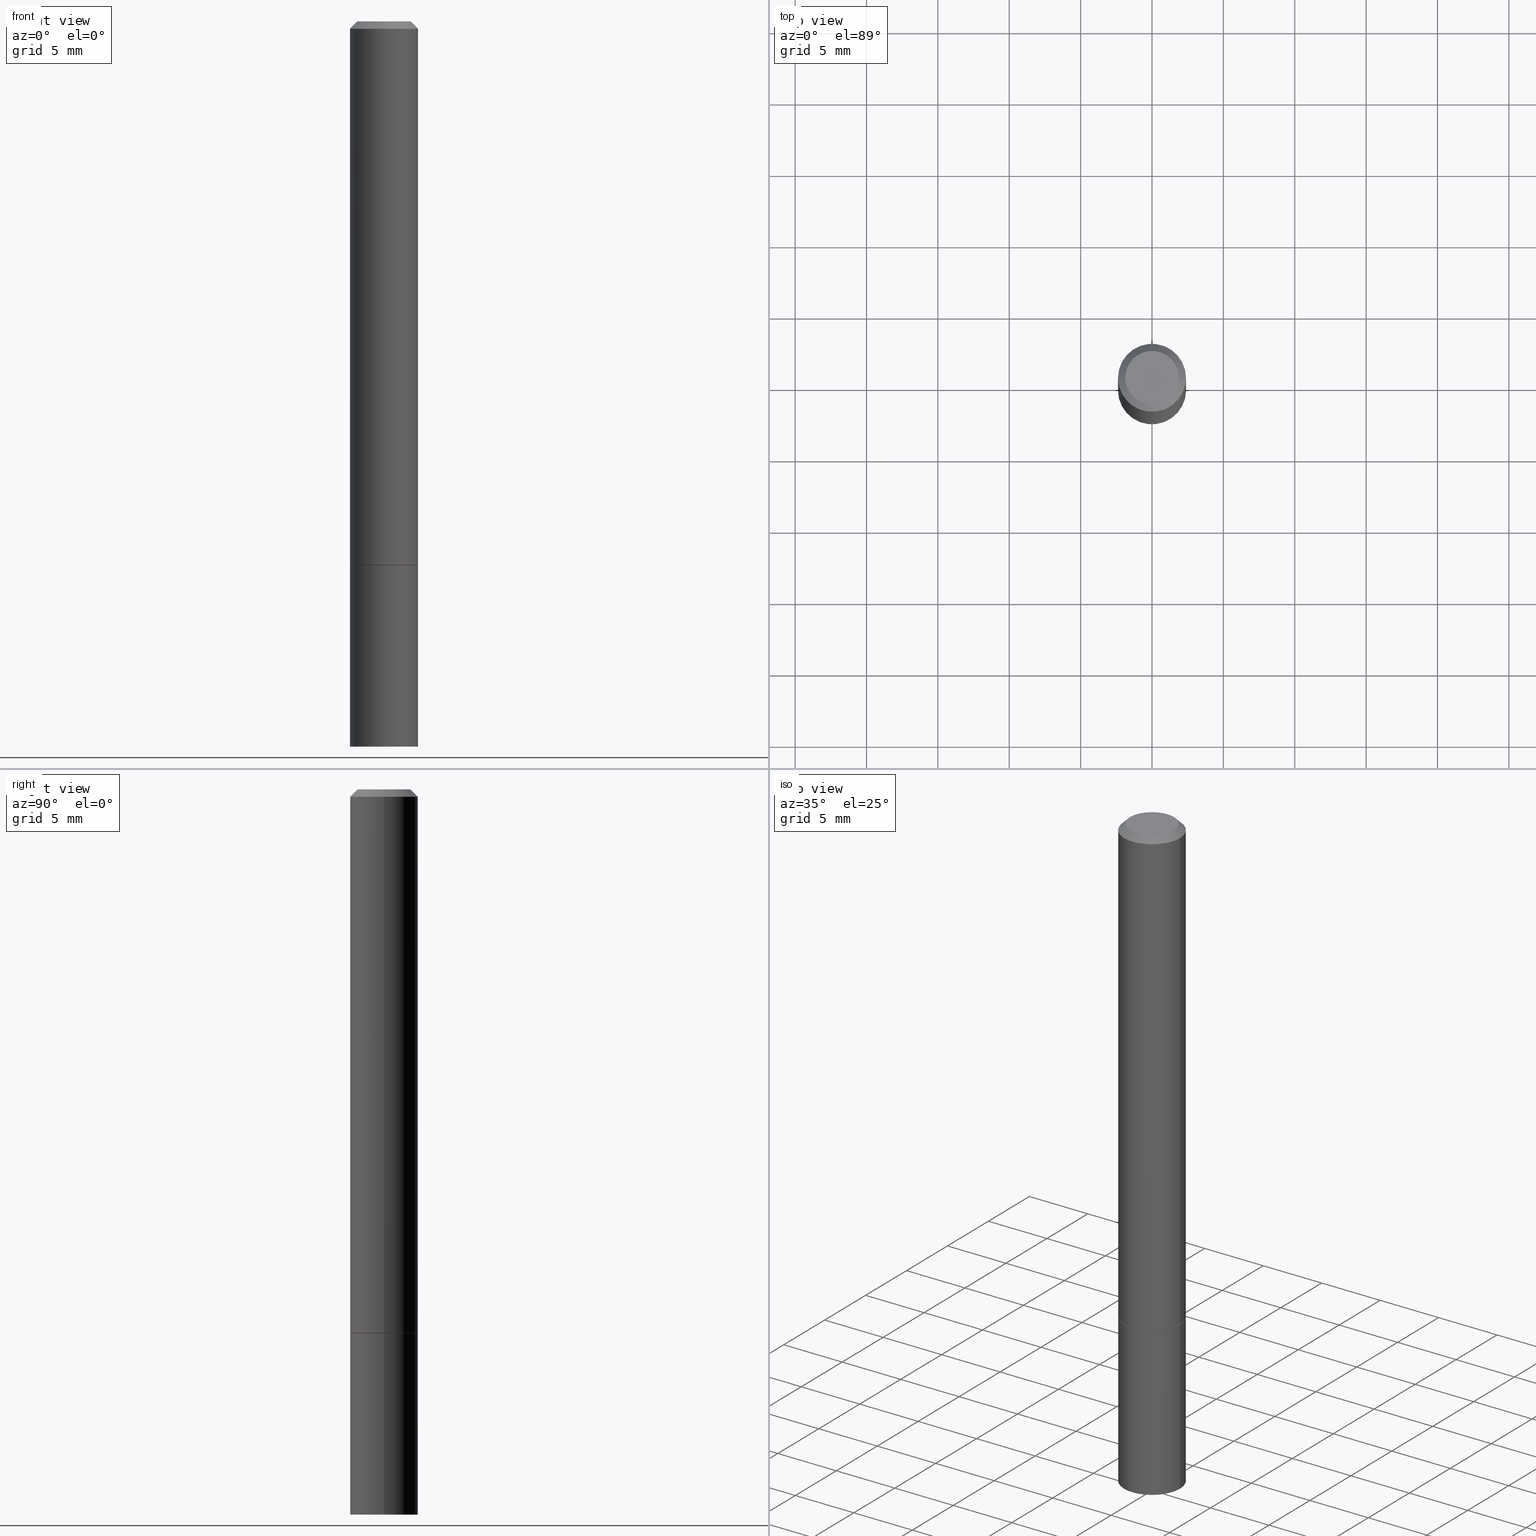
[diagram: canonical four-view strip — front | top / right | iso, engineering-drawing reading convention]
A machine part, canonical four-view strip (front | top / right | iso — engineering-drawing reading convention). The complete STEP part file that produces these views, byte-faithful:
ISO-10303-21;
HEADER;
FILE_DESCRIPTION (( 'STEP AP203' ),
    '1' );
FILE_NAME ('37006.STEP',
    '2024-02-27T20:03:52',
    ( '' ),
    ( '' ),
    'SwSTEP 2.0',
    'SolidWorks 2023',
    '' );
FILE_SCHEMA (( 'CONFIG_CONTROL_DESIGN' ));
ENDSEC;

DATA;
#1 = CC_DESIGN_APPROVAL ( #178, ( #62 ) ) ;
#2 = CALENDAR_DATE ( 2024, 27, 2 ) ;
#3 = ORIENTED_EDGE ( 'NONE', *, *, #364, .F. ) ;
#4 = APPROVAL_DATE_TIME ( #55, #285 ) ;
#5 = DIRECTION ( 'NONE',  ( -2.445468806185136597E-29, 3.491481338843145583E-15, 1.000000000000000000 ) ) ;
#6 = AXIS2_PLACEMENT_3D ( 'NONE', #323, #321, #291 ) ;
#7 = CC_DESIGN_APPROVAL ( #140, ( #213 ) ) ;
#8 = DIRECTION ( 'NONE',  ( 2.445468806185136597E-29, -3.491481338843145583E-15, -1.000000000000000000 ) ) ;
#9 = EDGE_LOOP ( 'NONE', ( #34, #318 ) ) ;
#10 = AXIS2_PLACEMENT_3D ( 'NONE', #163, #250, #19 ) ;
#11 = CC_DESIGN_PERSON_AND_ORGANIZATION_ASSIGNMENT ( #307, #105, ( #62 ) ) ;
#12 = DIRECTION ( 'NONE',  ( -2.445468806185136597E-29, 3.491481338843145583E-15, 1.000000000000000000 ) ) ;
#13 = CARTESIAN_POINT ( 'NONE',  ( 3.665757740471518732E-29, -5.233730526925875170E-15, -1.498999999999999666 ) ) ;
#14 = ORIENTED_EDGE ( 'NONE', *, *, #196, .F. ) ;
#15 = AXIS2_PLACEMENT_3D ( 'NONE', #119, #5, #288 ) ;
#16 = DIRECTION ( 'NONE',  ( 1.000000000000000000, -6.982962677686262766E-15, 0.000000000000000000 ) ) ;
#17 = DIRECTION ( 'NONE',  ( 1.000000000000000000, -6.982962677686262766E-15, 0.000000000000000000 ) ) ;
#18 = CARTESIAN_POINT ( 'NONE',  ( 0.09375000000000001388, -6.546527510330875041E-16, 4.571415727308690506E-30 ) ) ;
#19 = DIRECTION ( 'NONE',  ( 1.000000000000000000, -6.982962677686265922E-15, 4.876176775795935793E-29 ) ) ;
#20 = PLANE ( 'NONE',  #93 ) ;
#21 = CARTESIAN_POINT ( 'NONE',  ( -0.09375000000000001388, -1.985646262076272943E-15, -1.498999999999999666 ) ) ;
#22 = PERSON_AND_ORGANIZATION ( #287, #24 ) ;
#23 = CONICAL_SURFACE ( 'NONE', #150, 0.09274999999999998523, 0.7853981633974227439 ) ;
#24 = ORGANIZATION ( 'UNSPECIFIED', 'UNSPECIFIED', '' ) ;
#25 =( NAMED_UNIT ( * ) SI_UNIT ( $, .STERADIAN. ) SOLID_ANGLE_UNIT ( ) );
#26 = ADVANCED_FACE ( 'NONE', ( #245 ), #219, .F. ) ;
#27 = CARTESIAN_POINT ( 'NONE',  ( 0.000000000000000000, 0.000000000000000000, 0.000000000000000000 ) ) ;
#28 = DATE_AND_TIME ( #284, #41 ) ;
#29 = VECTOR ( 'NONE', #158, 39.37007874015748143 ) ;
#30 = ORIENTED_EDGE ( 'NONE', *, *, #60, .F. ) ;
#31 = VERTEX_POINT ( 'NONE', #71 ) ;
#32 = DIRECTION ( 'NONE',  ( -0.7071067811865466846, 2.468850131082247989E-15, -0.7071067811865483499 ) ) ;
#33 = PLANE ( 'NONE',  #366 ) ;
#34 = ORIENTED_EDGE ( 'NONE', *, *, #96, .F. ) ;
#35 = AXIS2_PLACEMENT_3D ( 'NONE', #328, #166, #54 ) ;
#36 = ADVANCED_FACE ( 'NONE', ( #77 ), #50, .F. ) ;
#37 = DIRECTION ( 'NONE',  ( -2.445468806185136597E-29, 3.491481338843145583E-15, 1.000000000000000000 ) ) ;
#38 = VERTEX_POINT ( 'NONE', #355 ) ;
#39 = CIRCLE ( 'NONE', #116, 0.09375000000000001388 ) ;
#40 = VECTOR ( 'NONE', #208, 39.37007874015748143 ) ;
#41 = LOCAL_TIME ( 15, 3, 52.00000000000000000, #136 ) ;
#42 = DIRECTION ( 'NONE',  ( -2.445468806185136597E-29, 3.491481338843145583E-15, 1.000000000000000000 ) ) ;
#43 = VERTEX_POINT ( 'NONE', #21 ) ;
#44 = CYLINDRICAL_SURFACE ( 'NONE', #263, 0.09374999999999991673 ) ;
#45 = ORIENTED_EDGE ( 'NONE', *, *, #340, .F. ) ;
#46 = CIRCLE ( 'NONE', #64, 0.09375000000000001388 ) ;
#47 = DIRECTION ( 'NONE',  ( 1.000000000000000000, -6.982962677686265922E-15, 4.876176775795935793E-29 ) ) ;
#48 = CC_DESIGN_SECURITY_CLASSIFICATION ( #85, ( #62 ) ) ;
#49 = CC_DESIGN_DATE_AND_TIME_ASSIGNMENT ( #28, #80, ( #85 ) ) ;
#50 = PLANE ( 'NONE',  #10 ) ;
#51 = ORIENTED_EDGE ( 'NONE', *, *, #326, .F. ) ;
#52 = ORIENTED_EDGE ( 'NONE', *, *, #60, .T. ) ;
#53 = FACE_OUTER_BOUND ( 'NONE', #134, .T. ) ;
#54 = DIRECTION ( 'NONE',  ( -1.000000000000000000, 6.982962677686265922E-15, -4.876176775795935793E-29 ) ) ;
#55 = DATE_AND_TIME ( #173, #122 ) ;
#56 = DIRECTION ( 'NONE',  ( -2.445468806185136597E-29, 3.491481338843145583E-15, 1.000000000000000000 ) ) ;
#57 = AXIS2_PLACEMENT_3D ( 'NONE', #13, #294, #73 ) ;
#58 = DATE_AND_TIME ( #2, #275 ) ;
#59 = APPROVAL_ROLE ( '' ) ;
#60 = EDGE_CURVE ( 'NONE', #258, #31, #61, .T. ) ;
#61 = CIRCLE ( 'NONE', #247, 0.09274999999999998523 ) ;
#62 = PRODUCT_DEFINITION_FORMATION_WITH_SPECIFIED_SOURCE ( 'ANY', '', #86, .NOT_KNOWN. ) ;
#63 = CARTESIAN_POINT ( 'NONE',  ( 4.890937612370282792E-31, -6.982962677686303935E-17, -0.02000000000000003858 ) ) ;
#64 = AXIS2_PLACEMENT_3D ( 'NONE', #308, #12, #92 ) ;
#65 = CARTESIAN_POINT ( 'NONE',  ( 4.890937612370282792E-31, -6.982962677686303935E-17, -0.02000000000000003858 ) ) ;
#66 = EDGE_CURVE ( 'NONE', #356, #38, #190, .T. ) ;
#67 = CARTESIAN_POINT ( 'NONE',  ( -0.09375000000000001388, -5.443958528200409958E-15, -2.000000000000000000 ) ) ;
#68 = CIRCLE ( 'NONE', #314, 0.09274999999999998523 ) ;
#69 = CARTESIAN_POINT ( 'NONE',  ( 3.668203209277704335E-29, -5.237222008264717388E-15, -1.499999999999999778 ) ) ;
#70 = CARTESIAN_POINT ( 'NONE',  ( 0.07374999999999982958, -6.094815207017961198E-16, 4.268512490104342487E-18 ) ) ;
#71 = CARTESIAN_POINT ( 'NONE',  ( 0.09274999999999998523, -5.884891796620118089E-15, -1.499999999999999778 ) ) ;
#72 = CC_DESIGN_DATE_AND_TIME_ASSIGNMENT ( #257, #260, ( #213 ) ) ;
#73 = DIRECTION ( 'NONE',  ( 1.000000000000000000, -6.982962677686261189E-15, 0.000000000000000000 ) ) ;
#74 = EDGE_LOOP ( 'NONE', ( #187, #30 ) ) ;
#75 = APPLICATION_CONTEXT ( 'configuration controlled 3d designs of mechanical parts and assemblies' ) ;
#76 = CARTESIAN_POINT ( 'NONE',  ( 4.890937612370282792E-31, -6.982962677686303935E-17, -0.02000000000000003858 ) ) ;
#77 = FACE_OUTER_BOUND ( 'NONE', #74, .T. ) ;
#78 = VERTEX_POINT ( 'NONE', #133 ) ;
#79 = ORIENTED_EDGE ( 'NONE', *, *, #170, .F. ) ;
#80 = DATE_TIME_ROLE ( 'classification_date' ) ;
#81 = ORIENTED_EDGE ( 'NONE', *, *, #131, .T. ) ;
#82 = APPROVAL_DATE_TIME ( #230, #178 ) ;
#83 = PRODUCT_RELATED_PRODUCT_CATEGORY ( 'detail', '', ( #86 ) ) ;
#84 = AXIS2_PLACEMENT_3D ( 'NONE', #97, #186, #279 ) ;
#85 = SECURITY_CLASSIFICATION ( '', '', #227 ) ;
#86 = PRODUCT ( '37006', '37006', '', ( #104 ) ) ;
#87 = FACE_OUTER_BOUND ( 'NONE', #164, .T. ) ;
#88 = EDGE_CURVE ( 'NONE', #341, #78, #103, .T. ) ;
#89 = CARTESIAN_POINT ( 'NONE',  ( -0.09374999999999981959, 5.848231242562232198E-16, -0.02000000000000003858 ) ) ;
#90 = EDGE_LOOP ( 'NONE', ( #81, #333 ) ) ;
#91 = FACE_OUTER_BOUND ( 'NONE', #248, .T. ) ;
#92 = DIRECTION ( 'NONE',  ( 1.000000000000000000, -6.982962677686261189E-15, 0.000000000000000000 ) ) ;
#93 = AXIS2_PLACEMENT_3D ( 'NONE', #304, #255, #102 ) ;
#94 = CARTESIAN_POINT ( 'NONE',  ( 0.09274999999999998523, -5.884891796620118089E-15, -1.499999999999999778 ) ) ;
#95 = ORIENTED_EDGE ( 'NONE', *, *, #264, .T. ) ;
#96 = EDGE_CURVE ( 'NONE', #149, #356, #46, .T. ) ;
#97 = CARTESIAN_POINT ( 'NONE',  ( 3.665757740471518732E-29, -5.233730526925875170E-15, -1.498999999999999666 ) ) ;
#98 = ADVANCED_BREP_SHAPE_REPRESENTATION ( '37006', ( #137, #130, #161 ), #110 ) ;
#99 = DIRECTION ( 'NONE',  ( -2.445468806185136597E-29, 3.491481338843145583E-15, 1.000000000000000000 ) ) ;
#100 = CARTESIAN_POINT ( 'NONE',  ( 3.668203209277704335E-29, -5.237222008264717388E-15, -1.499999999999999778 ) ) ;
#101 = CONICAL_SURFACE ( 'NONE', #109, 0.09374999999999981959, 0.7853981633974471688 ) ;
#102 = DIRECTION ( 'NONE',  ( -1.000000000000000000, 6.982962677686265922E-15, -4.876176775795935793E-29 ) ) ;
#103 = LINE ( 'NONE', #335, #203 ) ;
#104 = MECHANICAL_CONTEXT ( 'NONE', #259, 'mechanical' ) ;
#105 = PERSON_AND_ORGANIZATION_ROLE ( 'design_supplier' ) ;
#106 = FACE_OUTER_BOUND ( 'NONE', #261, .T. ) ;
#107 = ORIENTED_EDGE ( 'NONE', *, *, #221, .T. ) ;
#108 = APPROVAL_ROLE ( '' ) ;
#109 = AXIS2_PLACEMENT_3D ( 'NONE', #65, #266, #152 ) ;
#110 =( GEOMETRIC_REPRESENTATION_CONTEXT ( 3 ) GLOBAL_UNCERTAINTY_ASSIGNED_CONTEXT ( ( #322 ) ) GLOBAL_UNIT_ASSIGNED_CONTEXT ( ( #327, #299, #25 ) ) REPRESENTATION_CONTEXT ( 'NONE', 'WORKASPACE' ) );
#111 = CC_DESIGN_PERSON_AND_ORGANIZATION_ASSIGNMENT ( #22, #172, ( #213 ) ) ;
#112 = APPROVAL_STATUS ( 'not_yet_approved' ) ;
#113 = ORIENTED_EDGE ( 'NONE', *, *, #343, .F. ) ;
#114 = PERSON_AND_ORGANIZATION_ROLE ( 'design_owner' ) ;
#115 = EDGE_CURVE ( 'NONE', #124, #345, #286, .T. ) ;
#116 = AXIS2_PLACEMENT_3D ( 'NONE', #270, #201, #174 ) ;
#117 = DIRECTION ( 'NONE',  ( 1.000000000000000000, -6.982962677686262766E-15, 0.000000000000000000 ) ) ;
#118 = ORIENTED_EDGE ( 'NONE', *, *, #196, .T. ) ;
#119 = CARTESIAN_POINT ( 'NONE',  ( 0.000000000000000000, 0.000000000000000000, 0.000000000000000000 ) ) ;
#120 = CARTESIAN_POINT ( 'NONE',  ( 0.09375000000000001388, -5.891874759297804892E-15, -1.499999999999999778 ) ) ;
#121 = VECTOR ( 'NONE', #179, 39.37007874015748143 ) ;
#122 = LOCAL_TIME ( 15, 3, 52.00000000000000000, #336 ) ;
#123 = DIRECTION ( 'NONE',  ( 0.7071067811865294761, -2.468850131082068128E-15, 0.7071067811865655584 ) ) ;
#124 = VERTEX_POINT ( 'NONE', #70 ) ;
#125 = VECTOR ( 'NONE', #32, 39.37007874015748143 ) ;
#126 = DIRECTION ( 'NONE',  ( 1.000000000000000000, -6.982962677686266711E-15, 4.876176775795935793E-29 ) ) ;
#127 = EDGE_LOOP ( 'NONE', ( #107, #289, #51, #228 ) ) ;
#128 = DIRECTION ( 'NONE',  ( -2.445468806185136877E-29, 3.491481338843145188E-15, 1.000000000000000000 ) ) ;
#129 = ORIENTED_EDGE ( 'NONE', *, *, #346, .T. ) ;
#130 = MANIFOLD_SOLID_BREP ( 'Body-Move/Copy2[2]', #332 ) ;
#131 = EDGE_CURVE ( 'NONE', #185, #38, #39, .T. ) ;
#132 = CYLINDRICAL_SURFACE ( 'NONE', #302, 0.09375000000000001388 ) ;
#133 = CARTESIAN_POINT ( 'NONE',  ( 0.09374999999999981959, -7.130013140679429031E-16, -0.02000000000000003858 ) ) ;
#134 = EDGE_LOOP ( 'NONE', ( #339, #52, #175, #45 ) ) ;
#135 = VECTOR ( 'NONE', #128, 39.37007874015748143 ) ;
#136 = COORDINATED_UNIVERSAL_TIME_OFFSET ( 5, 0, .BEHIND. ) ;
#137 = MANIFOLD_SOLID_BREP ( 'Body-Move/Copy2[1]', #197 ) ;
#138 = PERSON_AND_ORGANIZATION ( #287, #24 ) ;
#139 = COORDINATED_UNIVERSAL_TIME_OFFSET ( 5, 0, .BEHIND. ) ;
#140 = APPROVAL ( #143, 'UNSPECIFIED' ) ;
#141 = DIRECTION ( 'NONE',  ( 1.000000000000000000, 0.000000000000000000, 0.000000000000000000 ) ) ;
#142 = CIRCLE ( 'NONE', #84, 0.09375000000000001388 ) ;
#143 = APPROVAL_STATUS ( 'not_yet_approved' ) ;
#144 = CYLINDRICAL_SURFACE ( 'NONE', #233, 0.09374999999999991673 ) ;
#145 = ORIENTED_EDGE ( 'NONE', *, *, #170, .T. ) ;
#146 = DIMENSIONAL_EXPONENTS ( 1.000000000000000000, 0.000000000000000000, 0.000000000000000000, 0.000000000000000000, 0.000000000000000000, 0.000000000000000000, 0.000000000000000000 ) ;
#147 = ADVANCED_FACE ( 'NONE', ( #106 ), #144, .T. ) ;
#148 = CARTESIAN_POINT ( 'NONE',  ( 4.890937612370282792E-31, -6.982962677686303935E-17, -0.02000000000000003858 ) ) ;
#149 = VERTEX_POINT ( 'NONE', #242 ) ;
#150 = AXIS2_PLACEMENT_3D ( 'NONE', #69, #331, #157 ) ;
#151 = CARTESIAN_POINT ( 'NONE',  ( 0.09374999999999981959, -7.130013140679429031E-16, -0.02000000000000003858 ) ) ;
#152 = DIRECTION ( 'NONE',  ( -1.000000000000000000, 6.982962677686267499E-15, 0.000000000000000000 ) ) ;
#153 = EDGE_CURVE ( 'NONE', #43, #204, #154, .T. ) ;
#154 = LINE ( 'NONE', #212, #40 ) ;
#155 = LINE ( 'NONE', #18, #135 ) ;
#156 = ADVANCED_FACE ( 'NONE', ( #267 ), #205, .T. ) ;
#157 = DIRECTION ( 'NONE',  ( 1.000000000000000000, -6.982962677686262766E-15, 0.000000000000000000 ) ) ;
#158 = DIRECTION ( 'NONE',  ( -2.445468806185136877E-29, 3.491481338843145188E-15, 1.000000000000000000 ) ) ;
#159 = FACE_OUTER_BOUND ( 'NONE', #90, .T. ) ;
#160 = ORIENTED_EDGE ( 'NONE', *, *, #153, .T. ) ;
#161 = AXIS2_PLACEMENT_3D ( 'NONE', #27, #194, #141 ) ;
#162 = DIRECTION ( 'NONE',  ( -2.445468806185136597E-29, 3.491481338843145583E-15, 1.000000000000000000 ) ) ;
#163 = CARTESIAN_POINT ( 'NONE',  ( 3.668203209277704335E-29, -5.237222008264717388E-15, -1.499999999999999778 ) ) ;
#164 = EDGE_LOOP ( 'NONE', ( #79, #274, #118, #129 ) ) ;
#165 = FACE_OUTER_BOUND ( 'NONE', #363, .T. ) ;
#166 = DIRECTION ( 'NONE',  ( 2.438088387897960049E-29, -3.491481338843145188E-15, -1.000000000000000000 ) ) ;
#167 = SHAPE_DEFINITION_REPRESENTATION ( #235, #98 ) ;
#168 = AXIS2_PLACEMENT_3D ( 'NONE', #354, #162, #16 ) ;
#169 = CALENDAR_DATE ( 2024, 27, 2 ) ;
#170 = EDGE_CURVE ( 'NONE', #124, #78, #317, .T. ) ;
#171 = DIRECTION ( 'NONE',  ( 1.000000000000000000, -6.982962677686266711E-15, 4.876176775795935793E-29 ) ) ;
#172 = PERSON_AND_ORGANIZATION_ROLE ( 'creator' ) ;
#173 = CALENDAR_DATE ( 2024, 27, 2 ) ;
#174 = DIRECTION ( 'NONE',  ( 1.000000000000000000, -6.982962677686261189E-15, 0.000000000000000000 ) ) ;
#175 = ORIENTED_EDGE ( 'NONE', *, *, #298, .T. ) ;
#176 = CONICAL_SURFACE ( 'NONE', #268, 0.09374999999999981959, 0.7853981633974471688 ) ;
#177 = APPROVAL_PERSON_ORGANIZATION ( #365, #178, #108 ) ;
#178 = APPROVAL ( #112, 'UNSPECIFIED' ) ;
#179 = DIRECTION ( 'NONE',  ( 0.7071067811865466846, -7.319954787623252890E-15, -0.7071067811865483499 ) ) ;
#180 = DESIGN_CONTEXT ( 'detailed design', #75, 'design' ) ;
#181 = DIRECTION ( 'NONE',  ( -2.445468806185136597E-29, 3.491481338843145583E-15, 1.000000000000000000 ) ) ;
#182 = CIRCLE ( 'NONE', #215, 0.09375000000000001388 ) ;
#183 = ADVANCED_FACE ( 'NONE', ( #265 ), #101, .T. ) ;
#184 = DIRECTION ( 'NONE',  ( 1.000000000000000000, -6.982962677686261189E-15, 0.000000000000000000 ) ) ;
#185 = VERTEX_POINT ( 'NONE', #120 ) ;
#186 = DIRECTION ( 'NONE',  ( -2.445468806185136597E-29, 3.491481338843145583E-15, 1.000000000000000000 ) ) ;
#187 = ORIENTED_EDGE ( 'NONE', *, *, #221, .F. ) ;
#188 = VECTOR ( 'NONE', #123, 39.37007874015748143 ) ;
#189 = CARTESIAN_POINT ( 'NONE',  ( 0.000000000000000000, 0.000000000000000000, 0.000000000000000000 ) ) ;
#190 = LINE ( 'NONE', #280, #29 ) ;
#191 = ORIENTED_EDGE ( 'NONE', *, *, #66, .F. ) ;
#192 = PERSON_AND_ORGANIZATION_ROLE ( 'creator' ) ;
#193 = DIRECTION ( 'NONE',  ( -2.445468806185136877E-29, 3.491481338843145188E-15, 1.000000000000000000 ) ) ;
#194 = DIRECTION ( 'NONE',  ( 0.000000000000000000, 0.000000000000000000, 1.000000000000000000 ) ) ;
#195 = CARTESIAN_POINT ( 'NONE',  ( 0.000000000000000000, 0.000000000000000000, 0.000000000000000000 ) ) ;
#196 = EDGE_CURVE ( 'NONE', #345, #204, #236, .T. ) ;
#197 = CLOSED_SHELL ( 'NONE', ( #306, #241, #357, #156 ) ) ;
#198 = PERSON_AND_ORGANIZATION ( #287, #24 ) ;
#199 = ORIENTED_EDGE ( 'NONE', *, *, #88, .T. ) ;
#200 = PERSON_AND_ORGANIZATION ( #287, #24 ) ;
#201 = DIRECTION ( 'NONE',  ( -2.445468806185136597E-29, 3.491481338843145583E-15, 1.000000000000000000 ) ) ;
#202 = ORIENTED_EDGE ( 'NONE', *, *, #153, .F. ) ;
#203 = VECTOR ( 'NONE', #193, 39.37007874015748143 ) ;
#204 = VERTEX_POINT ( 'NONE', #238 ) ;
#205 = CYLINDRICAL_SURFACE ( 'NONE', #15, 0.09375000000000001388 ) ;
#206 = ADVANCED_FACE ( 'NONE', ( #87 ), #176, .T. ) ;
#207 = ORIENTED_EDGE ( 'NONE', *, *, #115, .T. ) ;
#208 = DIRECTION ( 'NONE',  ( -2.445468806185136877E-29, 3.491481338843145188E-15, 1.000000000000000000 ) ) ;
#209 = CONICAL_SURFACE ( 'NONE', #168, 0.09274999999999998523, 0.7853981633974227439 ) ;
#210 = CIRCLE ( 'NONE', #315, 0.09375000000000001388 ) ;
#211 = DIRECTION ( 'NONE',  ( 1.000000000000000000, -6.982962677686267499E-15, 0.000000000000000000 ) ) ;
#212 = CARTESIAN_POINT ( 'NONE',  ( -0.09374999999999991673, 6.661338147750933326E-16, -4.611501647113969791E-30 ) ) ;
#213 = PRODUCT_DEFINITION ( 'UNKNOWN', '', #62, #180 ) ;
#214 = CARTESIAN_POINT ( 'NONE',  ( -0.07374999999999982958, 5.499083108677921624E-16, 4.268512490096688071E-18 ) ) ;
#215 = AXIS2_PLACEMENT_3D ( 'NONE', #351, #99, #220 ) ;
#216 = CARTESIAN_POINT ( 'NONE',  ( -1.043851414335219820E-46, 1.490343170380447200E-32, 4.268512490100411279E-18 ) ) ;
#217 = LOCAL_TIME ( 15, 3, 52.00000000000000000, #283 ) ;
#218 =( LENGTH_UNIT ( ) NAMED_UNIT ( * ) SI_UNIT ( $, .METRE. ) );
#219 = PLANE ( 'NONE',  #35 ) ;
#220 = DIRECTION ( 'NONE',  ( 1.000000000000000000, -6.982962677686261189E-15, 0.000000000000000000 ) ) ;
#221 = EDGE_CURVE ( 'NONE', #31, #258, #68, .T. ) ;
#222 = CARTESIAN_POINT ( 'NONE',  ( 0.000000000000000000, 0.000000000000000000, 0.000000000000000000 ) ) ;
#223 = CARTESIAN_POINT ( 'NONE',  ( 3.668203209277704335E-29, -5.237222008264717388E-15, -1.499999999999999778 ) ) ;
#224 = ORIENTED_EDGE ( 'NONE', *, *, #237, .T. ) ;
#225 = PERSON_AND_ORGANIZATION ( #287, #24 ) ;
#226 = EDGE_CURVE ( 'NONE', #78, #204, #310, .T. ) ;
#227 = SECURITY_CLASSIFICATION_LEVEL ( 'unclassified' ) ;
#228 = ORIENTED_EDGE ( 'NONE', *, *, #298, .F. ) ;
#229 = CIRCLE ( 'NONE', #6, 0.07374999999999982958 ) ;
#230 = DATE_AND_TIME ( #362, #217 ) ;
#231 = APPROVAL_DATE_TIME ( #58, #140 ) ;
#232 = CC_DESIGN_PERSON_AND_ORGANIZATION_ASSIGNMENT ( #200, #337, ( #85 ) ) ;
#233 = AXIS2_PLACEMENT_3D ( 'NONE', #195, #338, #171 ) ;
#234 = DIRECTION ( 'NONE',  ( -1.000000000000000000, 6.982962677686267499E-15, 0.000000000000000000 ) ) ;
#235 = PRODUCT_DEFINITION_SHAPE ( 'NONE', 'NONE',  #213 ) ;
#236 = LINE ( 'NONE', #89, #125 ) ;
#237 = EDGE_CURVE ( 'NONE', #345, #124, #229, .T. ) ;
#238 = CARTESIAN_POINT ( 'NONE',  ( -0.09374999999999981959, 5.848231242562232198E-16, -0.02000000000000003858 ) ) ;
#239 = CARTESIAN_POINT ( 'NONE',  ( 3.668203209277704335E-29, -5.237222008264717388E-15, -1.499999999999999778 ) ) ;
#240 = AXIS2_PLACEMENT_3D ( 'NONE', #76, #42, #269 ) ;
#241 = ADVANCED_FACE ( 'NONE', ( #319 ), #33, .T. ) ;
#242 = CARTESIAN_POINT ( 'NONE',  ( 0.09375000000000001388, -7.637615428719378669E-15, -2.000000000000000000 ) ) ;
#243 = ORIENTED_EDGE ( 'NONE', *, *, #66, .T. ) ;
#244 = DIRECTION ( 'NONE',  ( -2.445468806185136597E-29, 3.491481338843145583E-15, 1.000000000000000000 ) ) ;
#245 = FACE_OUTER_BOUND ( 'NONE', #359, .T. ) ;
#246 = LENGTH_MEASURE_WITH_UNIT ( LENGTH_MEASURE( 0.02539999999999999897 ), #218 );
#247 = AXIS2_PLACEMENT_3D ( 'NONE', #100, #56, #17 ) ;
#248 = EDGE_LOOP ( 'NONE', ( #281, #243, #277, #113 ) ) ;
#249 = CARTESIAN_POINT ( 'NONE',  ( 6.546527510331364135E-16, 0.09374999999999301947, -2.000000000000000444 ) ) ;
#250 = DIRECTION ( 'NONE',  ( -2.438088387897960049E-29, 3.491481338843145188E-15, 1.000000000000000000 ) ) ;
#251 = ADVANCED_FACE ( 'NONE', ( #53 ), #209, .T. ) ;
#252 = FACE_OUTER_BOUND ( 'NONE', #127, .T. ) ;
#253 = ORIENTED_EDGE ( 'NONE', *, *, #226, .F. ) ;
#254 = ORIENTED_EDGE ( 'NONE', *, *, #88, .F. ) ;
#255 = DIRECTION ( 'NONE',  ( 2.438088387897960049E-29, -3.491481338843145188E-15, -1.000000000000000000 ) ) ;
#256 = APPROVAL_PERSON_ORGANIZATION ( #313, #285, #59 ) ;
#257 = DATE_AND_TIME ( #169, #361 ) ;
#258 = VERTEX_POINT ( 'NONE', #353 ) ;
#259 = APPLICATION_CONTEXT ( 'configuration controlled 3d designs of mechanical parts and assemblies' ) ;
#260 = DATE_TIME_ROLE ( 'creation_date' ) ;
#261 = EDGE_LOOP ( 'NONE', ( #330, #160, #253, #254 ) ) ;
#262 = APPROVAL_STATUS ( 'not_yet_approved' ) ;
#263 = AXIS2_PLACEMENT_3D ( 'NONE', #222, #276, #126 ) ;
#264 = EDGE_CURVE ( 'NONE', #356, #149, #182, .T. ) ;
#265 = FACE_OUTER_BOUND ( 'NONE', #360, .T. ) ;
#266 = DIRECTION ( 'NONE',  ( 2.445468806185136597E-29, -3.491481338843145583E-15, -1.000000000000000000 ) ) ;
#267 = FACE_OUTER_BOUND ( 'NONE', #303, .T. ) ;
#268 = AXIS2_PLACEMENT_3D ( 'NONE', #63, #8, #234 ) ;
#269 = DIRECTION ( 'NONE',  ( 1.000000000000000000, -6.982962677686267499E-15, 0.000000000000000000 ) ) ;
#270 = CARTESIAN_POINT ( 'NONE',  ( 3.668203209277704335E-29, -5.237222008264717388E-15, -1.499999999999999778 ) ) ;
#271 = DIRECTION ( 'NONE',  ( -1.000000000000000000, 6.982962677686265922E-15, -4.876176775795935793E-29 ) ) ;
#272 = EDGE_CURVE ( 'NONE', #258, #43, #349, .T. ) ;
#273 = AXIS2_PLACEMENT_3D ( 'NONE', #216, #325, #352 ) ;
#274 = ORIENTED_EDGE ( 'NONE', *, *, #237, .F. ) ;
#275 = LOCAL_TIME ( 15, 3, 52.00000000000000000, #139 ) ;
#276 = DIRECTION ( 'NONE',  ( -2.445468806185136597E-29, 3.491481338843145583E-15, 1.000000000000000000 ) ) ;
#277 = ORIENTED_EDGE ( 'NONE', *, *, #131, .F. ) ;
#278 = ORIENTED_EDGE ( 'NONE', *, *, #343, .T. ) ;
#279 = DIRECTION ( 'NONE',  ( 1.000000000000000000, -6.982962677686261189E-15, 0.000000000000000000 ) ) ;
#280 = CARTESIAN_POINT ( 'NONE',  ( -0.09375000000000001388, 6.661338147750940229E-16, -4.611501647113973995E-30 ) ) ;
#281 = ORIENTED_EDGE ( 'NONE', *, *, #96, .T. ) ;
#282 = CC_DESIGN_PERSON_AND_ORGANIZATION_ASSIGNMENT ( #225, #114, ( #86 ) ) ;
#283 = COORDINATED_UNIVERSAL_TIME_OFFSET ( 5, 0, .BEHIND. ) ;
#284 = CALENDAR_DATE ( 2024, 27, 2 ) ;
#285 = APPROVAL ( #262, 'UNSPECIFIED' ) ;
#286 = CIRCLE ( 'NONE', #273, 0.07374999999999982958 ) ;
#287 = PERSON ( 'UNSPECIFIED', 'UNSPECIFIED', 'UNSPECIFIED', ('UNSPECIFIED'), ('UNSPECIFIED'), ('UNSPECIFIED') ) ;
#288 = DIRECTION ( 'NONE',  ( 1.000000000000000000, -6.982962677686265922E-15, 4.876176775795935793E-29 ) ) ;
#289 = ORIENTED_EDGE ( 'NONE', *, *, #272, .T. ) ;
#290 = ADVANCED_FACE ( 'NONE', ( #165 ), #44, .T. ) ;
#291 = DIRECTION ( 'NONE',  ( 1.000000000000000000, -6.982962677686266711E-15, 4.875869617646596737E-29 ) ) ;
#292 = CC_DESIGN_PERSON_AND_ORGANIZATION_ASSIGNMENT ( #138, #192, ( #62 ) ) ;
#293 = CIRCLE ( 'NONE', #57, 0.09375000000000001388 ) ;
#294 = DIRECTION ( 'NONE',  ( -2.445468806185136597E-29, 3.491481338843145583E-15, 1.000000000000000000 ) ) ;
#295 = CC_DESIGN_APPROVAL ( #285, ( #85 ) ) ;
#296 = APPROVAL_PERSON_ORGANIZATION ( #198, #140, #342 ) ;
#297 = CARTESIAN_POINT ( 'NONE',  ( -0.09274999999999998523, -4.578193620847224472E-15, -1.499999999999999778 ) ) ;
#298 = EDGE_CURVE ( 'NONE', #31, #341, #324, .T. ) ;
#299 =( NAMED_UNIT ( * ) PLANE_ANGLE_UNIT ( ) SI_UNIT ( $, .RADIAN. ) );
#300 = ORIENTED_EDGE ( 'NONE', *, *, #115, .F. ) ;
#301 = CARTESIAN_POINT ( 'NONE',  ( 0.09375000000000001388, -5.888383277958961885E-15, -1.498999999999999666 ) ) ;
#302 = AXIS2_PLACEMENT_3D ( 'NONE', #189, #244, #47 ) ;
#303 = EDGE_LOOP ( 'NONE', ( #191, #95, #278, #3 ) ) ;
#304 = CARTESIAN_POINT ( 'NONE',  ( 6.546527510331241861E-16, 0.09374999999999476807, -1.500000000000000222 ) ) ;
#305 = ORIENTED_EDGE ( 'NONE', *, *, #226, .T. ) ;
#306 = ADVANCED_FACE ( 'NONE', ( #91 ), #132, .T. ) ;
#307 = PERSON_AND_ORGANIZATION ( #287, #24 ) ;
#308 = CARTESIAN_POINT ( 'NONE',  ( 4.890937612370273194E-29, -6.982962677686291165E-15, -2.000000000000000000 ) ) ;
#309 = COORDINATED_UNIVERSAL_TIME_OFFSET ( 5, 0, .BEHIND. ) ;
#310 = CIRCLE ( 'NONE', #320, 0.09374999999999981959 ) ;
#311 = ORIENTED_EDGE ( 'NONE', *, *, #340, .T. ) ;
#312 = APPLICATION_PROTOCOL_DEFINITION ( 'international standard', 'config_control_design', 1994, #75 ) ;
#313 = PERSON_AND_ORGANIZATION ( #287, #24 ) ;
#314 = AXIS2_PLACEMENT_3D ( 'NONE', #239, #37, #117 ) ;
#315 = AXIS2_PLACEMENT_3D ( 'NONE', #223, #181, #184 ) ;
#316 = ORIENTED_EDGE ( 'NONE', *, *, #346, .F. ) ;
#317 = LINE ( 'NONE', #151, #121 ) ;
#318 = ORIENTED_EDGE ( 'NONE', *, *, #264, .F. ) ;
#319 = FACE_OUTER_BOUND ( 'NONE', #9, .T. ) ;
#320 = AXIS2_PLACEMENT_3D ( 'NONE', #148, #348, #211 ) ;
#321 = DIRECTION ( 'NONE',  ( -2.445468806185136597E-29, 3.491481338843145583E-15, 1.000000000000000000 ) ) ;
#322 = UNCERTAINTY_MEASURE_WITH_UNIT (LENGTH_MEASURE( 1.000000000000000082E-05 ), #327, 'distance_accuracy_value', 'NONE');
#323 = CARTESIAN_POINT ( 'NONE',  ( -1.043851414335219820E-46, 1.490343170380447200E-32, 4.268512490100411279E-18 ) ) ;
#324 = LINE ( 'NONE', #94, #188 ) ;
#325 = DIRECTION ( 'NONE',  ( -2.445468806185136597E-29, 3.491481338843145583E-15, 1.000000000000000000 ) ) ;
#326 = EDGE_CURVE ( 'NONE', #341, #43, #142, .T. ) ;
#327 =( CONVERSION_BASED_UNIT ( 'INCH', #246 ) LENGTH_UNIT ( ) NAMED_UNIT ( #146 ) );
#328 = CARTESIAN_POINT ( 'NONE',  ( 5.149934974793609077E-16, 0.07374999999999982958, -2.553624924946311773E-16 ) ) ;
#329 = DIRECTION ( 'NONE',  ( -0.7071067811865294761, 7.493145998870289474E-15, 0.7071067811865655584 ) ) ;
#330 = ORIENTED_EDGE ( 'NONE', *, *, #326, .T. ) ;
#331 = DIRECTION ( 'NONE',  ( -2.445468806185136597E-29, 3.491481338843145583E-15, 1.000000000000000000 ) ) ;
#332 = CLOSED_SHELL ( 'NONE', ( #350, #147, #183, #206, #290, #251, #36, #26 ) ) ;
#333 = ORIENTED_EDGE ( 'NONE', *, *, #364, .T. ) ;
#334 = APPLICATION_PROTOCOL_DEFINITION ( 'international standard', 'config_control_design', 1994, #259 ) ;
#335 = CARTESIAN_POINT ( 'NONE',  ( 0.09374999999999991673, -6.546527510330869125E-16, 4.571415727308685602E-30 ) ) ;
#336 = COORDINATED_UNIVERSAL_TIME_OFFSET ( 5, 0, .BEHIND. ) ;
#337 = PERSON_AND_ORGANIZATION_ROLE ( 'classification_officer' ) ;
#338 = DIRECTION ( 'NONE',  ( -2.445468806185136597E-29, 3.491481338843145583E-15, 1.000000000000000000 ) ) ;
#339 = ORIENTED_EDGE ( 'NONE', *, *, #272, .F. ) ;
#340 = EDGE_CURVE ( 'NONE', #43, #341, #293, .T. ) ;
#341 = VERTEX_POINT ( 'NONE', #301 ) ;
#342 = APPROVAL_ROLE ( '' ) ;
#343 = EDGE_CURVE ( 'NONE', #149, #185, #155, .T. ) ;
#344 = VECTOR ( 'NONE', #329, 39.37007874015748143 ) ;
#345 = VERTEX_POINT ( 'NONE', #214 ) ;
#346 = EDGE_CURVE ( 'NONE', #204, #78, #347, .T. ) ;
#347 = CIRCLE ( 'NONE', #240, 0.09374999999999981959 ) ;
#348 = DIRECTION ( 'NONE',  ( -2.445468806185136597E-29, 3.491481338843145583E-15, 1.000000000000000000 ) ) ;
#349 = LINE ( 'NONE', #297, #344 ) ;
#350 = ADVANCED_FACE ( 'NONE', ( #252 ), #23, .T. ) ;
#351 = CARTESIAN_POINT ( 'NONE',  ( 4.890937612370273194E-29, -6.982962677686291165E-15, -2.000000000000000000 ) ) ;
#352 = DIRECTION ( 'NONE',  ( 1.000000000000000000, -6.982962677686266711E-15, 4.875869617646596737E-29 ) ) ;
#353 = CARTESIAN_POINT ( 'NONE',  ( -0.09274999999999998523, -4.572895166499002070E-15, -1.499999999999999778 ) ) ;
#354 = CARTESIAN_POINT ( 'NONE',  ( 3.668203209277704335E-29, -5.237222008264717388E-15, -1.499999999999999778 ) ) ;
#355 = CARTESIAN_POINT ( 'NONE',  ( -0.09375000000000001388, -5.443958528200409958E-15, -1.499999999999999778 ) ) ;
#356 = VERTEX_POINT ( 'NONE', #67 ) ;
#357 = ADVANCED_FACE ( 'NONE', ( #159 ), #20, .F. ) ;
#358 = DIRECTION ( 'NONE',  ( 2.438088387897960049E-29, -3.491481338843145188E-15, -1.000000000000000000 ) ) ;
#359 = EDGE_LOOP ( 'NONE', ( #224, #207 ) ) ;
#360 = EDGE_LOOP ( 'NONE', ( #300, #145, #305, #14 ) ) ;
#361 = LOCAL_TIME ( 15, 3, 52.00000000000000000, #309 ) ;
#362 = CALENDAR_DATE ( 2024, 27, 2 ) ;
#363 = EDGE_LOOP ( 'NONE', ( #202, #311, #199, #316 ) ) ;
#364 = EDGE_CURVE ( 'NONE', #38, #185, #210, .T. ) ;
#365 = PERSON_AND_ORGANIZATION ( #287, #24 ) ;
#366 = AXIS2_PLACEMENT_3D ( 'NONE', #249, #358, #271 ) ;
ENDSEC;
END-ISO-10303-21;
